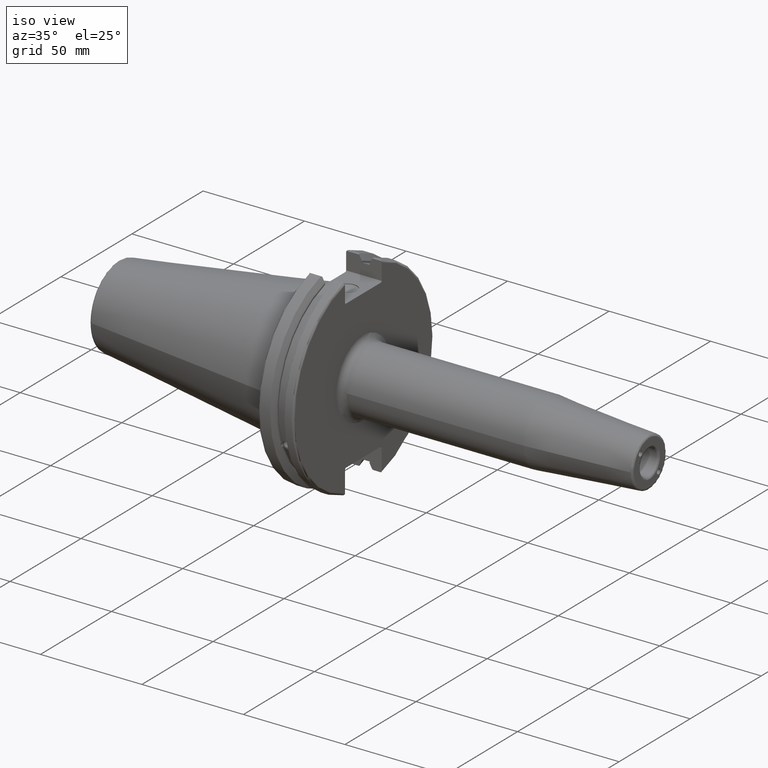
[diagram: clean part render]
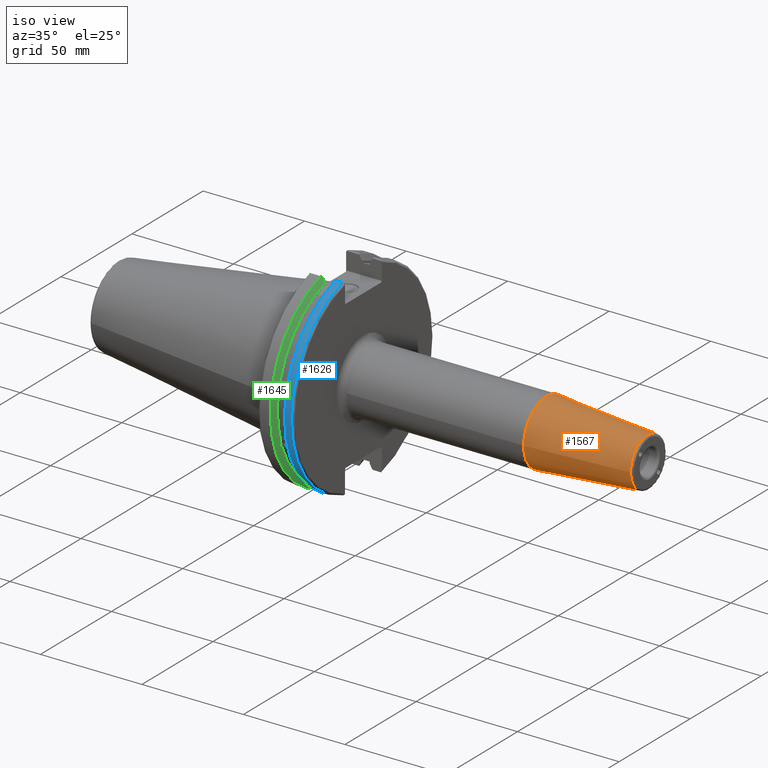
[diagram: same view with three faces highlighted in distinct colors, each labeled with its STEP entity id]
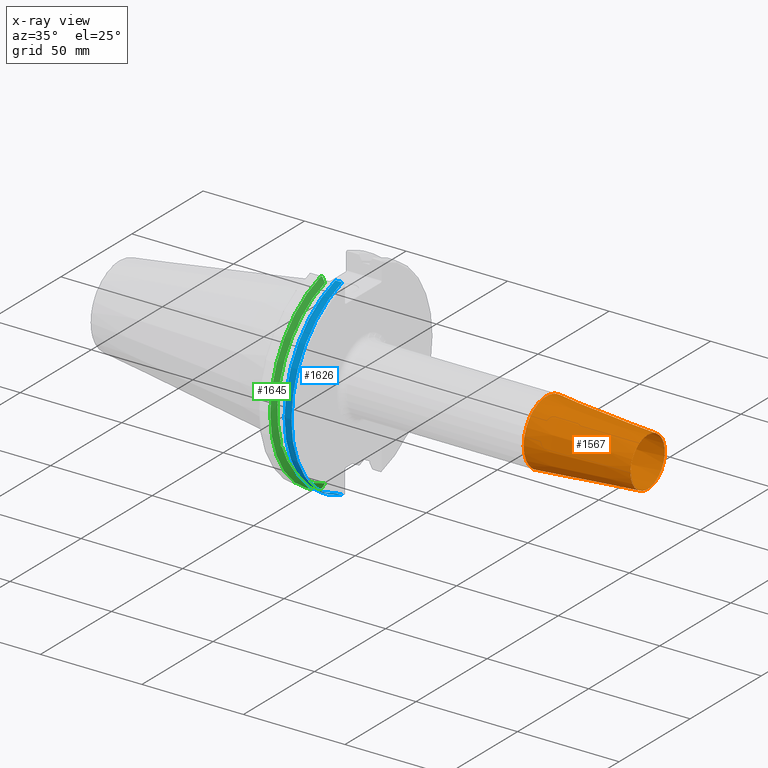
[diagram: x-ray of the same camera — body ghosted, the three highlighted faces saturated]
A machine part, iso view with three faces highlighted in distinct colors.
The next image is the same camera in x-ray (body ghosted, the three faces saturated) — at least one of them is partly hidden behind the body in this view.
Their STEP definitions:

[orange] entity #1567 — the highlighted conical surface has half-angle 4.5 deg.
#181=FACE_OUTER_BOUND('',#276,.T.);
#276=EDGE_LOOP('',(#1092,#1093,#1094,#1095,#1096));
#382=LINE('',#2350,#480);
#480=VECTOR('',#1903,14.);
#582=CIRCLE('',#1693,12.0725268420749);
#583=CIRCLE('',#1694,12.0725268420749);
#584=CIRCLE('',#1696,16.);
#666=VERTEX_POINT('',#2343);
#667=VERTEX_POINT('',#2345);
#668=VERTEX_POINT('',#2349);
#833=EDGE_CURVE('',#666,#667,#582,.T.);
#834=EDGE_CURVE('',#667,#666,#583,.T.);
#835=EDGE_CURVE('',#667,#668,#382,.T.);
#836=EDGE_CURVE('',#668,#668,#584,.T.);
#1092=ORIENTED_EDGE('',*,*,#834,.F.);
#1093=ORIENTED_EDGE('',*,*,#835,.T.);
#1094=ORIENTED_EDGE('',*,*,#836,.T.);
#1095=ORIENTED_EDGE('',*,*,#835,.F.);
#1096=ORIENTED_EDGE('',*,*,#833,.F.);
#1545=CONICAL_SURFACE('',#1695,14.,0.0785398163397453);
#1567=ADVANCED_FACE('',(#181),#1545,.T.);
#1693=AXIS2_PLACEMENT_3D('',#2346,#1897,#1898);
#1694=AXIS2_PLACEMENT_3D('',#2347,#1899,#1900);
#1695=AXIS2_PLACEMENT_3D('',#2348,#1901,#1902);
#1696=AXIS2_PLACEMENT_3D('',#2351,#1904,#1905);
#1897=DIRECTION('center_axis',(1.,0.,0.));
#1898=DIRECTION('ref_axis',(0.,-1.,3.06161699786838E-17));
#1899=DIRECTION('center_axis',(1.,0.,0.));
#1900=DIRECTION('ref_axis',(0.,-1.,3.06161699786838E-17));
#1901=DIRECTION('center_axis',(-1.,0.,0.));
#1902=DIRECTION('ref_axis',(0.,1.,0.));
#1903=DIRECTION('',(-0.996917333733128,-0.0784590957278454,-9.60846804471016E-18));
#1904=DIRECTION('center_axis',(1.,0.,0.));
#1905=DIRECTION('ref_axis',(0.,0.,-1.));
#2343=CARTESIAN_POINT('',(159.078459095728,-1.47845813547676E-15,12.0725268420749));
#2345=CARTESIAN_POINT('',(159.078459095728,-12.0725268420749,-1.47845813547676E-15));
#2346=CARTESIAN_POINT('Origin',(159.078459095728,0.,-1.84807266934594E-15));
#2347=CARTESIAN_POINT('Origin',(159.078459095728,0.,-1.84807266934594E-15));
#2348=CARTESIAN_POINT('Origin',(134.587590527651,0.,0.));
#2349=CARTESIAN_POINT('',(109.175181055301,-16.,-1.95943487863577E-15));
#2350=CARTESIAN_POINT('',(134.587590527651,-14.,-1.71450551880629E-15));
#2351=CARTESIAN_POINT('Origin',(109.175181055301,0.,0.));

[blue] entity #1626 — the highlighted cylindrical surface (partial cylindrical patch) has radius 49.2125 mm, axis along (1, 0, 0).
#165=CYLINDRICAL_SURFACE('',#1810,49.2125);
#240=FACE_OUTER_BOUND('',#349,.T.);
#349=EDGE_LOOP('',(#1435,#1436,#1437,#1438));
#465=LINE('',#3220,#563);
#466=LINE('',#3222,#564);
#563=VECTOR('',#2214,10.);
#564=VECTOR('',#2217,10.);
#607=CIRCLE('',#1740,49.2125);
#625=CIRCLE('',#1778,49.2125);
#720=VERTEX_POINT('',#2698);
#721=VERTEX_POINT('',#2702);
#768=VERTEX_POINT('',#3028);
#769=VERTEX_POINT('',#3037);
#903=EDGE_CURVE('',#721,#720,#607,.T.);
#969=EDGE_CURVE('',#768,#769,#625,.T.);
#1031=EDGE_CURVE('',#769,#720,#465,.T.);
#1032=EDGE_CURVE('',#721,#768,#466,.T.);
#1435=ORIENTED_EDGE('',*,*,#969,.F.);
#1436=ORIENTED_EDGE('',*,*,#1032,.F.);
#1437=ORIENTED_EDGE('',*,*,#903,.T.);
#1438=ORIENTED_EDGE('',*,*,#1031,.F.);
#1626=ADVANCED_FACE('',(#240),#165,.T.);
#1740=AXIS2_PLACEMENT_3D('',#2703,#2019,#2020);
#1778=AXIS2_PLACEMENT_3D('',#3038,#2116,#2117);
#1810=AXIS2_PLACEMENT_3D('',#3221,#2215,#2216);
#2019=DIRECTION('center_axis',(1.,0.,0.));
#2020=DIRECTION('ref_axis',(0.,0.,-1.));
#2116=DIRECTION('center_axis',(1.,0.,0.));
#2117=DIRECTION('ref_axis',(0.,-1.,1.60812264967664E-16));
#2214=DIRECTION('',(-1.,0.,0.));
#2215=DIRECTION('center_axis',(1.,0.,0.));
#2216=DIRECTION('ref_axis',(0.,-1.,1.22464679914735E-16));
#2217=DIRECTION('',(1.,0.,0.));
#2698=CARTESIAN_POINT('',(14.6531090340487,-13.4317035994433,-47.3440544806494));
#2702=CARTESIAN_POINT('',(14.6531090340487,-13.4317035994433,47.3440544806494));
#2703=CARTESIAN_POINT('Origin',(14.6531090340487,0.,0.));
#3028=CARTESIAN_POINT('',(18.05,-13.4317035994433,47.3440544806494));
#3037=CARTESIAN_POINT('',(18.05,-13.4317035994433,-47.3440544806494));
#3038=CARTESIAN_POINT('Origin',(18.05,0.,0.));
#3220=CARTESIAN_POINT('',(16.8515545170244,-13.4317035994433,-47.3440544806494));
#3221=CARTESIAN_POINT('Origin',(16.8515545170244,0.,0.));
#3222=CARTESIAN_POINT('',(16.8515545170244,-13.4317035994433,47.3440544806494));

[green] entity #1645 — the highlighted conical surface has half-angle 60 deg.
#25=(
BOUNDED_CURVE()
B_SPLINE_CURVE(2,(#3062,#3063,#3064),.UNSPECIFIED.,.F.,.F.)
B_SPLINE_CURVE_WITH_KNOTS((3,3),(0.,0.275823910674147),.UNSPECIFIED.)
CURVE()
GEOMETRIC_REPRESENTATION_ITEM()
RATIONAL_B_SPLINE_CURVE((1.,1.00038235575218,1.00012873637034))
REPRESENTATION_ITEM('')
);
#26=(
BOUNDED_CURVE()
B_SPLINE_CURVE(2,(#3074,#3075,#3076),.UNSPECIFIED.,.F.,.F.)
B_SPLINE_CURVE_WITH_KNOTS((3,3),(0.0558332664509065,0.331657177124505),
 .UNSPECIFIED.)
CURVE()
GEOMETRIC_REPRESENTATION_ITEM()
RATIONAL_B_SPLINE_CURVE((1.00012873636557,1.000382355738,1.))
REPRESENTATION_ITEM('')
);
#27=(
BOUNDED_CURVE()
B_SPLINE_CURVE(2,(#3113,#3114,#3115),.UNSPECIFIED.,.F.,.F.)
B_SPLINE_CURVE_WITH_KNOTS((3,3),(0.,0.0648240472898412),.UNSPECIFIED.)
CURVE()
GEOMETRIC_REPRESENTATION_ITEM()
RATIONAL_B_SPLINE_CURVE((1.,1.00011477674841,1.00019140645956))
REPRESENTATION_ITEM('')
);
#28=(
BOUNDED_CURVE()
B_SPLINE_CURVE(2,(#3121,#3122,#3123),.UNSPECIFIED.,.F.,.F.)
B_SPLINE_CURVE_WITH_KNOTS((3,3),(0.325260944932532,0.390084992222201),
 .UNSPECIFIED.)
CURVE()
GEOMETRIC_REPRESENTATION_ITEM()
RATIONAL_B_SPLINE_CURVE((1.0001914064599,1.00011477674861,1.))
REPRESENTATION_ITEM('')
);
#44=B_SPLINE_CURVE_WITH_KNOTS('',3,(#2631,#2632,#2633,#2634,#2635,#2636,
#2637,#2638,#2639,#2640,#2641,#2642,#2643,#2644),.UNSPECIFIED.,.F.,.F.,
(4,2,2,2,2,2,4),(0.426712868358722,0.441644498666905,0.480313313223129,
0.518982127779352,0.557650942335576,0.5963197568918,0.611251387199983),
 .UNSPECIFIED.);
#259=FACE_OUTER_BOUND('',#370,.T.);
#370=EDGE_LOOP('',(#1517,#1518,#1519,#1520,#1521,#1522,#1523,#1524));
#611=CIRCLE('',#1747,46.4219772964944);
#628=CIRCLE('',#1786,49.2125);
#651=CIRCLE('',#1843,46.4219772964944);
#708=VERTEX_POINT('',#2628);
#709=VERTEX_POINT('',#2630);
#726=VERTEX_POINT('',#2722);
#773=VERTEX_POINT('',#3059);
#774=VERTEX_POINT('',#3061);
#777=VERTEX_POINT('',#3073);
#783=VERTEX_POINT('',#3111);
#784=VERTEX_POINT('',#3117);
#887=EDGE_CURVE('',#709,#708,#44,.T.);
#911=EDGE_CURVE('',#709,#726,#611,.T.);
#975=EDGE_CURVE('',#774,#773,#25,.T.);
#981=EDGE_CURVE('',#777,#726,#26,.T.);
#991=EDGE_CURVE('',#783,#773,#27,.T.);
#993=EDGE_CURVE('',#783,#784,#628,.T.);
#994=EDGE_CURVE('',#777,#784,#28,.T.);
#1054=EDGE_CURVE('',#774,#708,#651,.T.);
#1517=ORIENTED_EDGE('',*,*,#887,.T.);
#1518=ORIENTED_EDGE('',*,*,#1054,.F.);
#1519=ORIENTED_EDGE('',*,*,#975,.T.);
#1520=ORIENTED_EDGE('',*,*,#991,.F.);
#1521=ORIENTED_EDGE('',*,*,#993,.T.);
#1522=ORIENTED_EDGE('',*,*,#994,.F.);
#1523=ORIENTED_EDGE('',*,*,#981,.T.);
#1524=ORIENTED_EDGE('',*,*,#911,.F.);
#1558=CONICAL_SURFACE('',#1842,47.8172386482472,1.0471975511966);
#1645=ADVANCED_FACE('',(#259),#1558,.T.);
#1747=AXIS2_PLACEMENT_3D('',#2723,#2035,#2036);
#1786=AXIS2_PLACEMENT_3D('',#3119,#2145,#2146);
#1842=AXIS2_PLACEMENT_3D('',#3273,#2287,#2288);
#1843=AXIS2_PLACEMENT_3D('',#3274,#2289,#2290);
#2035=DIRECTION('center_axis',(1.,0.,0.));
#2036=DIRECTION('ref_axis',(0.,0.,-1.));
#2145=DIRECTION('center_axis',(1.,0.,0.));
#2146=DIRECTION('ref_axis',(0.,0.,-1.));
#2287=DIRECTION('center_axis',(-1.,0.,0.));
#2288=DIRECTION('ref_axis',(0.,-1.,-1.22464679914735E-16));
#2289=DIRECTION('center_axis',(1.,0.,0.));
#2290=DIRECTION('ref_axis',(0.,0.,-1.));
#2628=CARTESIAN_POINT('',(9.21200000000001,-43.9096390749305,-15.0646464421033));
#2630=CARTESIAN_POINT('',(9.21200000000001,-43.3201030900029,-16.6843832486479));
#2631=CARTESIAN_POINT('Ctrl Pts',(9.21199999999999,-43.3201030900029,-16.6843832486479));
#2632=CARTESIAN_POINT('Ctrl Pts',(9.1950184390339,-43.3613106941341,-16.6592273018006));
#2633=CARTESIAN_POINT('Ctrl Pts',(9.17898675403322,-43.4012416983558,-16.6326763251437));
#2634=CARTESIAN_POINT('Ctrl Pts',(9.12528673845037,-43.5391037343221,-16.5325130832406));
#2635=CARTESIAN_POINT('Ctrl Pts',(9.08911610663555,-43.6406982153492,-16.441180795372));
#2636=CARTESIAN_POINT('Ctrl Pts',(9.03980868251975,-43.8110833825828,-16.2291323464528));
#2637=CARTESIAN_POINT('Ctrl Pts',(9.02699999999999,-43.8794096049169,-16.10796730316));
#2638=CARTESIAN_POINT('Ctrl Pts',(9.02699999999999,-43.9675796948952,-15.8657219718732));
#2639=CARTESIAN_POINT('Ctrl Pts',(9.03980868251975,-43.9931221605126,-15.7289849146254));
#2640=CARTESIAN_POINT('Ctrl Pts',(9.08911610663555,-43.9989016655819,-15.4570249042868));
#2641=CARTESIAN_POINT('Ctrl Pts',(9.12528673845037,-43.9797830409459,-15.3217566390709));
#2642=CARTESIAN_POINT('Ctrl Pts',(9.17898675403322,-43.9385582852181,-15.1564111356409));
#2643=CARTESIAN_POINT('Ctrl Pts',(9.19501843903391,-43.9250360001461,-15.1104047527575));
#2644=CARTESIAN_POINT('Ctrl Pts',(9.21199999999999,-43.9096390749306,-15.0646464421033));
#2722=CARTESIAN_POINT('',(9.21200000000001,-12.95,-44.5791147973604));
#2723=CARTESIAN_POINT('Origin',(9.21200000000001,0.,0.));
#3059=CARTESIAN_POINT('',(7.87928960562426,-12.95,46.9780755322917));
#3061=CARTESIAN_POINT('',(9.21200000000001,-12.95,44.5791147973604));
#3062=CARTESIAN_POINT('Ctrl Pts',(9.21200000000001,-12.95,44.5791147973605));
#3063=CARTESIAN_POINT('Ctrl Pts',(8.56310449054192,-12.95,45.7494966802447));
#3064=CARTESIAN_POINT('Ctrl Pts',(7.87928960562426,-12.95,46.9780755322917));
#3073=CARTESIAN_POINT('',(7.87928960562426,-12.95,-46.9780755322918));
#3074=CARTESIAN_POINT('Ctrl Pts',(7.87928960562426,-12.95,-46.9780755322918));
#3075=CARTESIAN_POINT('Ctrl Pts',(8.56310449054483,-12.95,-45.7494966802395));
#3076=CARTESIAN_POINT('Ctrl Pts',(9.21200000000001,-12.95,-44.5791147973605));
#3111=CARTESIAN_POINT('',(7.60089096595127,-13.4317035994433,47.3440544806494));
#3113=CARTESIAN_POINT('Ctrl Pts',(7.60089096595127,-13.4317035994433,47.3440544806494));
#3114=CARTESIAN_POINT('Ctrl Pts',(7.74116896663818,-13.1896660169967,47.1601640966265));
#3115=CARTESIAN_POINT('Ctrl Pts',(7.87928960562426,-12.95,46.9780755322917));
#3117=CARTESIAN_POINT('',(7.60089096595127,-13.4317035994433,-47.3440544806494));
#3119=CARTESIAN_POINT('Origin',(7.60089096595127,0.,0.));
#3121=CARTESIAN_POINT('Ctrl Pts',(7.87928960562426,-12.95,-46.9780755322918));
#3122=CARTESIAN_POINT('Ctrl Pts',(7.74116896663828,-13.1896660169965,-47.1601640966264));
#3123=CARTESIAN_POINT('Ctrl Pts',(7.60089096595127,-13.4317035994434,-47.3440544806494));
#3273=CARTESIAN_POINT('Origin',(8.40644548297565,0.,0.));
#3274=CARTESIAN_POINT('Origin',(9.21200000000001,0.,0.));